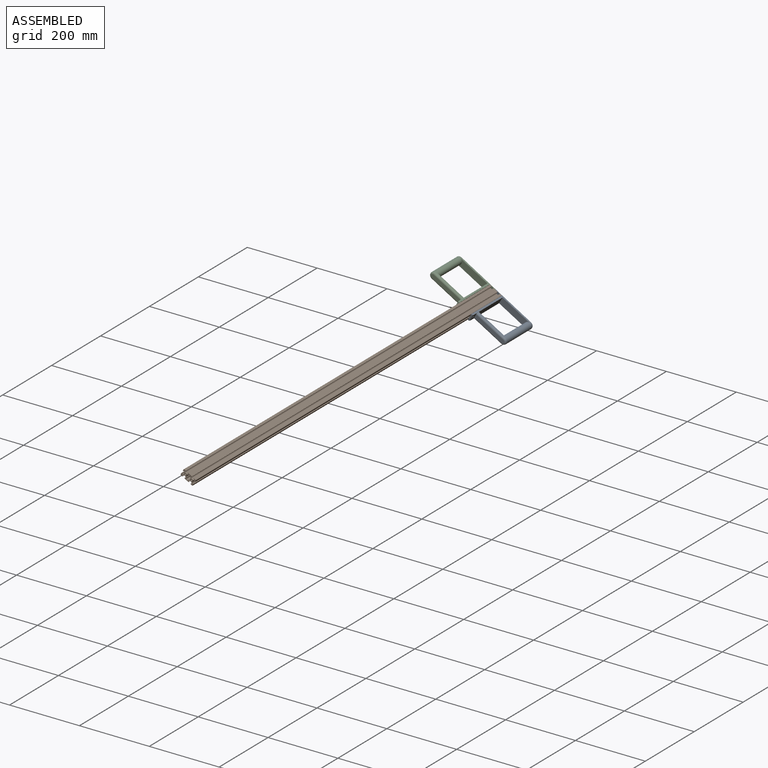
[diagram: assembled view]
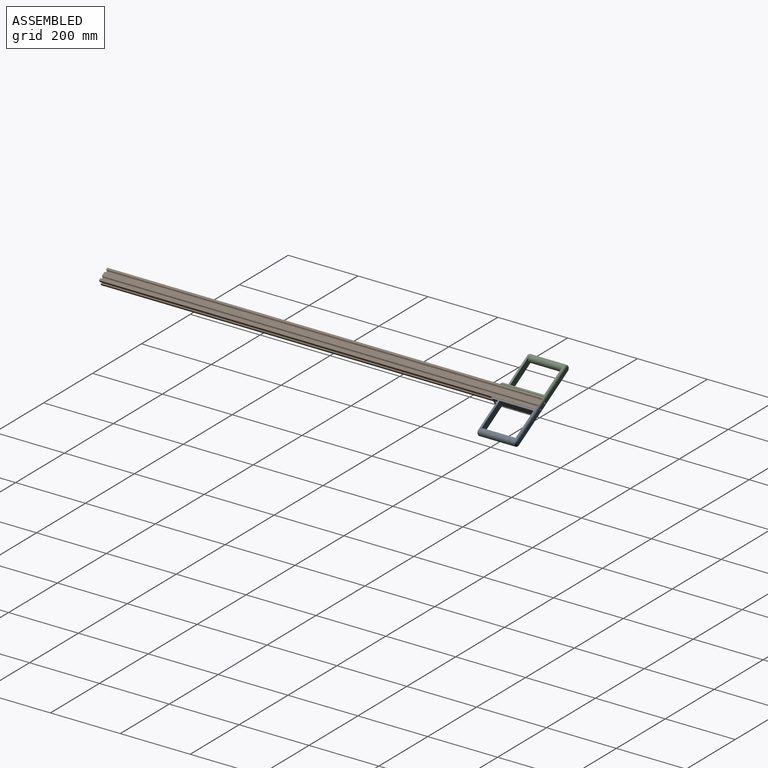
[diagram: assembled view, second angle]
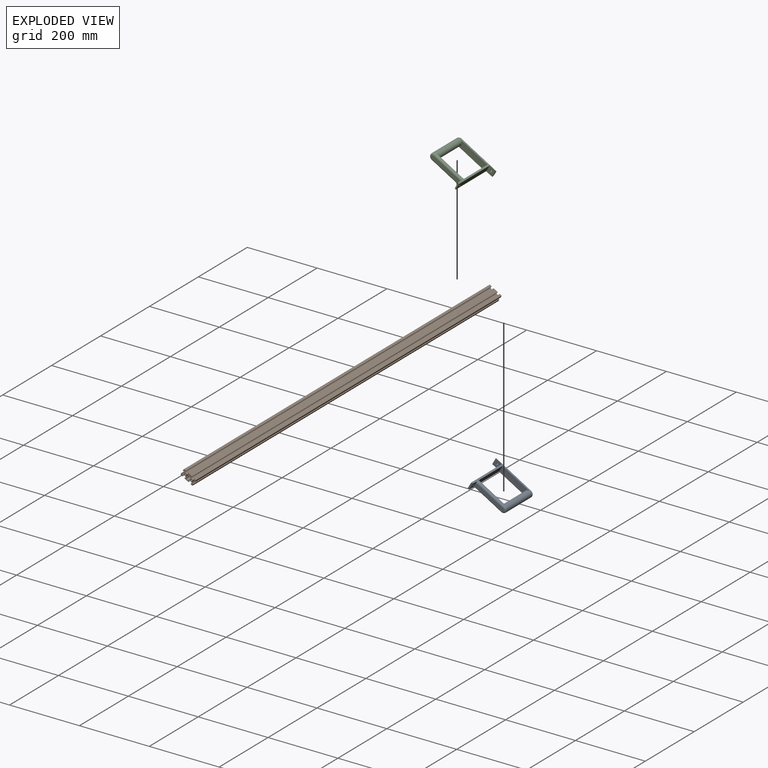
[diagram: exploded view]
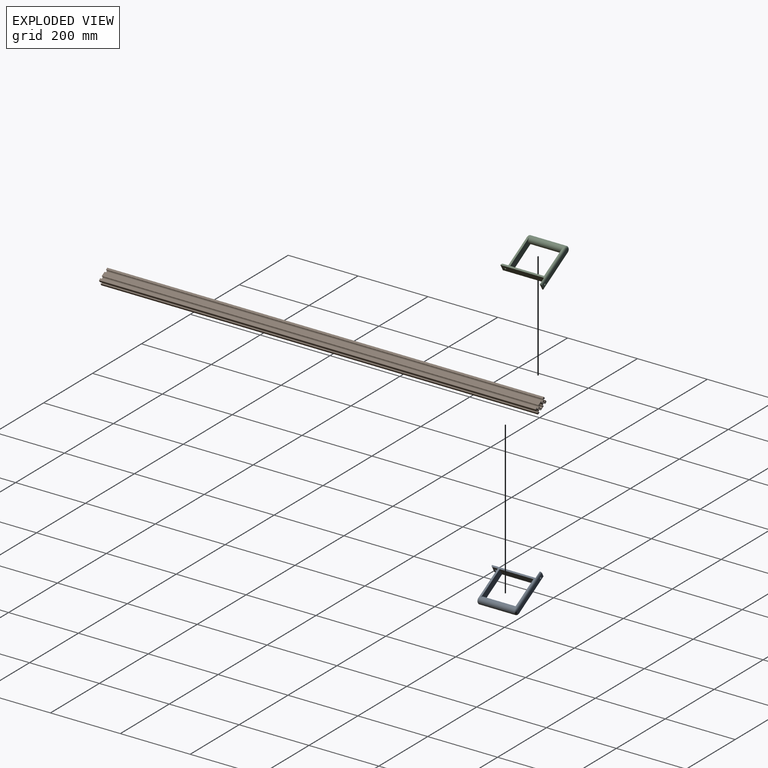
[diagram: exploded view, second angle]
ASSEMBLY  parts=3 mates=2
PART A: 21 faces, bbox 21.6x130x125.8 mm
  f0: plane 120x10mm, normal (0,1,0), area 1167.6mm2, adj f10,f11,f18,f19,f20
  f1: plane 125x95mm, normal (-1,0,0), area 1159.6mm2, adj f4,f5,f6,f8,f12,f13,f14,f15
  f2: plane 125x95mm, normal (1,0,0), area 1159.6mm2, adj f4,f5,f6,f8,f12,f13,f14,f17
  f3: plane 95x10mm, normal (0,-1,0), area 939.3mm2, adj f5,f15,f16,f17
  f4: plane 90x20mm, normal (0,1,0), area 1642.9mm2, adj f1,f2,f6,f14
  f5: plane 20x17.15mm, normal (0,0,1), area 232mm2, adj f1,f2,f3,f7,f12,f15,f17
  f6: plane 96.85x20mm, normal (0,0,1), area 1937mm2, adj f1,f2,f4,f13
  f7: cylinder r=2.62mm len=5.25mm, axis (0,0,-1), area 82.5mm2, adj f5,f8
  f8: plane 125x20mm, normal (0,0,-1), area 2478.4mm2, adj f1,f2,f7,f9,f12
  f9: plane 20x20mm, normal (0,-1,0), area 378.4mm2, adj f8,f10,f11,f18,f20
  f10: plane 20x5mm, normal (0,0,-1), area 89.3mm2, adj f0,f9,f18,f20
  f11: cylinder r=2.62mm len=5.25mm, axis (0,-1,0), area 82.5mm2, adj f0,f9
  f12: cylinder r=5mm len=20mm, axis (-1,0,0), area 157.1mm2, adj f1,f2,f5,f8
  f13: plane 90x20mm, normal (0,-1,0), area 1642.9mm2, adj f1,f2,f6,f14
  f14: cylinder r=10mm len=102.85mm, axis (0,1,0), area 6273.9mm2, adj f1,f2,f4,f13,f16,f19
  f15: cylinder r=5mm len=90mm, axis (0,0,1), area 706.9mm2, adj f1,f3,f5,f16
  f16: torus R=5mm, axis (0,-1,0), area 201.9mm2, adj f3,f14,f15,f17
  f17: cylinder r=5mm len=90mm, axis (0,0,-1), area 706.9mm2, adj f2,f3,f5,f16
  f18: cylinder r=5mm len=115mm, axis (0,0,1), area 903.2mm2, adj f0,f1,f9,f10,f19
  f19: torus R=5mm, axis (0,1,0), area 201.9mm2, adj f0,f14,f18,f20
  f20: cylinder r=5mm len=115mm, axis (0,0,-1), area 903.2mm2, adj f0,f2,f9,f10,f19
PART B: 202 faces, bbox 40x1250x20 mm
  f0: plane 40x20mm, normal (0,1,0), area 299mm2, adj f1,f2,f3,f4,f5,f6,f7,f8
  f1: cylinder r=0.2mm len=1250mm, axis (0,1,0), area 392.7mm2, adj f0,f2,f174,f201
  f2: plane 1250x4.7mm, normal (0,0,1), area 5875mm2, adj f0,f1,f3,f201
  f3: cylinder r=1.5mm len=1250mm, axis (0,1,0), area 2945.2mm2, adj f0,f2,f4,f201
  f4: plane 1250x4.7mm, normal (-1,0,0), area 5875mm2, adj f0,f3,f5,f201
  f5: cylinder r=0.2mm len=1250mm, axis (0,1,0), area 392.7mm2, adj f0,f4,f6,f201
  f6: plane 1250x0.1mm, normal (0,0,-1), area 125mm2, adj f0,f5,f7,f201
  f7: cylinder r=0.2mm len=1250mm, axis (0,1,0), area 392.7mm2, adj f0,f6,f8,f201
  f8: plane 1250x0.1mm, normal (-1,0,0), area 125mm2, adj f0,f7,f9,f201
  f9: cylinder r=0.2mm len=1250mm, axis (0,1,0), area 392.7mm2, adj f0,f8,f10,f201
  f10: plane 1250x0.8mm, normal (0,0,-1), area 1000mm2, adj f0,f9,f11,f201
  f11: cylinder r=0.3mm len=1250mm, axis (0,1,0), area 589mm2, adj f0,f10,f12,f201
  f12: plane 1250x1.8mm, normal (1,0,0), area 2250mm2, adj f0,f11,f13,f201
  f13: cylinder r=0.3mm len=1250mm, axis (0,1,0), area 589mm2, adj f0,f12,f14,f201
  f14: plane 1250x0.72mm, normal (0,0,-1), area 897.5mm2, adj f0,f13,f15,f201
  f15: cylinder r=1.5mm len=1250mm, axis (0,1,0), area 1472.6mm2, adj f0,f14,f16,f201
  f16: plane 1250x1.78mm, normal (-0.71,0,-0.71), area 3150.1mm2, adj f0,f15,f17,f201
  f17: cylinder r=1.5mm len=1250mm, axis (0,1,0), area 1472.6mm2, adj f0,f16,f18,f201
  f18: plane 1250x4.44mm, normal (-1,0,0), area 5545mm2, adj f0,f17,f19,f201
  f19: cylinder r=1.5mm len=1250mm, axis (0,1,0), area 1472.6mm2, adj f0,f18,f20,f201
  f20: plane 1250x1.78mm, normal (-0.71,0,0.71), area 3150.1mm2, adj f0,f19,f21,f201
  f21: cylinder r=1.5mm len=1250mm, axis (0,1,0), area 1472.6mm2, adj f0,f20,f22,f201
  f22: plane 1250x0.72mm, normal (0,0,1), area 897.5mm2, adj f0,f21,f23,f201
  f23: cylinder r=0.3mm len=1250mm, axis (0,1,0), area 589mm2, adj f0,f22,f24,f201
  f24: plane 1250x1.8mm, normal (1,0,0), area 2250mm2, adj f0,f23,f25,f201
  f25: cylinder r=0.3mm len=1250mm, axis (0,1,0), area 589mm2, adj f0,f24,f26,f201
  f26: plane 1250x0.8mm, normal (0,0,1), area 1000mm2, adj f0,f25,f27,f201
  f27: cylinder r=0.2mm len=1250mm, axis (0,1,0), area 392.7mm2, adj f0,f26,f28,f201
  f28: plane 1250x0.1mm, normal (-1,0,0), area 125mm2, adj f0,f27,f29,f201
  f29: cylinder r=0.2mm len=1250mm, axis (0,1,0), area 392.7mm2, adj f0,f28,f30,f201
  f30: plane 1250x0.1mm, normal (0,0,1), area 125mm2, adj f0,f29,f31,f201
  f31: cylinder r=0.2mm len=1250mm, axis (0,1,0), area 392.7mm2, adj f0,f30,f32,f201
  f32: plane 1250x4.7mm, normal (-1,0,0), area 5875mm2, adj f0,f31,f33,f201
  f33: cylinder r=1.5mm len=1250mm, axis (0,1,0), area 2945.2mm2, adj f0,f32,f34,f201
  f34: plane 1250x4.7mm, normal (0,0,-1), area 5875mm2, adj f0,f33,f35,f201
  f35: cylinder r=0.2mm len=1250mm, axis (0,1,0), area 392.7mm2, adj f0,f34,f36,f201
  f36: plane 1250x0.1mm, normal (1,0,0), area 125mm2, adj f0,f35,f37,f201
  f37: cylinder r=0.2mm len=1250mm, axis (0,1,0), area 392.7mm2, adj f0,f36,f38,f201
  f38: plane 1250x0.1mm, normal (0,0,-1), area 125mm2, adj f0,f37,f39,f201
  f39: cylinder r=0.2mm len=1250mm, axis (0,1,0), area 392.7mm2, adj f0,f38,f40,f201
  f40: plane 1250x0.8mm, normal (1,0,0), area 1000mm2, adj f0,f39,f41,f201
  f41: cylinder r=0.3mm len=1250mm, axis (0,1,0), area 589mm2, adj f0,f40,f42,f201
  f42: plane 1250x1.8mm, normal (0,0,1), area 2250mm2, adj f0,f41,f43,f201
  f43: cylinder r=0.3mm len=1250mm, axis (0,1,0), area 589mm2, adj f0,f42,f44,f201
  f44: plane 1250x0.72mm, normal (1,0,0), area 897.5mm2, adj f0,f43,f45,f201
  f45: cylinder r=1.5mm len=1250mm, axis (0,1,0), area 1472.6mm2, adj f0,f44,f46,f201
  f46: plane 1250x1.78mm, normal (0.71,0,-0.71), area 3150.1mm2, adj f0,f45,f47,f201
  f47: cylinder r=1.5mm len=1250mm, axis (0,1,0), area 1472.6mm2, adj f0,f46,f48,f201
  f48: plane 1250x4.44mm, normal (0,0,-1), area 5545mm2, adj f0,f47,f49,f201
  f49: cylinder r=1.5mm len=1250mm, axis (0,1,0), area 1472.6mm2, adj f0,f48,f50,f201
  f50: plane 1250x1.78mm, normal (-0.71,0,-0.71), area 3150.1mm2, adj f0,f49,f51,f201
  f51: cylinder r=1.5mm len=1250mm, axis (0,1,0), area 1472.6mm2, adj f0,f50,f52,f201
  f52: plane 1250x0.72mm, normal (-1,0,0), area 897.5mm2, adj f0,f51,f53,f201
  f53: cylinder r=0.3mm len=1250mm, axis (0,1,0), area 589mm2, adj f0,f52,f54,f201
  f54: plane 1250x1.8mm, normal (0,0,1), area 2250mm2, adj f0,f53,f55,f201
  f55: cylinder r=0.3mm len=1250mm, axis (0,1,0), area 589mm2, adj f0,f54,f56,f201
  f56: plane 1250x0.8mm, normal (-1,0,0), area 1000mm2, adj f0,f55,f57,f201
  f57: cylinder r=0.2mm len=1250mm, axis (0,1,0), area 392.7mm2, adj f0,f56,f58,f201
  f58: plane 1250x0.1mm, normal (0,0,-1), area 125mm2, adj f0,f57,f59,f201
  f59: cylinder r=0.2mm len=1250mm, axis (0,1,0), area 392.7mm2, adj f0,f58,f60,f201
  f60: plane 1250x0.1mm, normal (-1,0,0), area 125mm2, adj f0,f59,f61,f201
  f61: cylinder r=0.2mm len=1250mm, axis (0,1,0), area 392.7mm2, adj f0,f60,f62,f201
  f62: plane 1250x12.4mm, normal (0,0,-1), area 15500mm2, adj f0,f61,f63,f201
  f63: cylinder r=0.2mm len=1250mm, axis (0,1,0), area 392.7mm2, adj f0,f62,f64,f201
  f64: plane 1250x0.1mm, normal (1,0,0), area 125mm2, adj f0,f63,f65,f201
  f65: cylinder r=0.2mm len=1250mm, axis (0,1,0), area 392.7mm2, adj f0,f64,f66,f201
  f66: plane 1250x0.1mm, normal (0,0,-1), area 125mm2, adj f0,f65,f67,f201
  f67: cylinder r=0.2mm len=1250mm, axis (0,1,0), area 392.7mm2, adj f0,f66,f68,f201
  f68: plane 1250x0.8mm, normal (1,0,0), area 1000mm2, adj f0,f67,f69,f201
  f69: cylinder r=0.3mm len=1250mm, axis (0,1,0), area 589mm2, adj f0,f68,f70,f201
  f70: plane 1250x1.8mm, normal (0,0,1), area 2250mm2, adj f0,f69,f71,f201
  f71: cylinder r=0.3mm len=1250mm, axis (0,1,0), area 589mm2, adj f0,f70,f72,f201
  f72: plane 1250x0.72mm, normal (1,0,0), area 897.5mm2, adj f0,f71,f73,f201
  f73: cylinder r=1.5mm len=1250mm, axis (0,1,0), area 1472.6mm2, adj f0,f72,f74,f201
  f74: plane 1250x1.78mm, normal (0.71,0,-0.71), area 3150.1mm2, adj f0,f73,f75,f201
  f75: cylinder r=1.5mm len=1250mm, axis (0,1,0), area 1472.6mm2, adj f0,f74,f76,f201
  f76: plane 1250x4.44mm, normal (0,0,-1), area 5545mm2, adj f0,f75,f77,f201
  f77: cylinder r=1.5mm len=1250mm, axis (0,1,0), area 1472.6mm2, adj f0,f76,f78,f201
  f78: plane 1250x1.78mm, normal (-0.71,0,-0.71), area 3150.1mm2, adj f0,f77,f79,f201
  f79: cylinder r=1.5mm len=1250mm, axis (0,1,0), area 1472.6mm2, adj f0,f78,f80,f201
  f80: plane 1250x0.72mm, normal (-1,0,0), area 897.5mm2, adj f0,f79,f81,f201
  f81: cylinder r=0.3mm len=1250mm, axis (0,1,0), area 589mm2, adj f0,f80,f82,f201
  f82: plane 1250x1.8mm, normal (0,0,1), area 2250mm2, adj f0,f81,f83,f201
  f83: cylinder r=0.3mm len=1250mm, axis (0,1,0), area 589mm2, adj f0,f82,f84,f201
  f84: plane 1250x0.8mm, normal (-1,0,0), area 1000mm2, adj f0,f83,f85,f201
  f85: cylinder r=0.2mm len=1250mm, axis (0,1,0), area 392.7mm2, adj f0,f84,f86,f201
  f86: plane 1250x0.1mm, normal (0,0,-1), area 125mm2, adj f0,f85,f87,f201
  f87: cylinder r=0.2mm len=1250mm, axis (0,1,0), area 392.7mm2, adj f0,f86,f88,f201
  f88: plane 1250x0.1mm, normal (-1,0,0), area 125mm2, adj f0,f87,f89,f201
  f89: cylinder r=0.2mm len=1250mm, axis (0,1,0), area 392.7mm2, adj f0,f88,f90,f201
  f90: plane 1250x4.7mm, normal (0,0,-1), area 5875mm2, adj f0,f89,f91,f201
  f91: cylinder r=1.5mm len=1250mm, axis (0,1,0), area 2945.2mm2, adj f0,f90,f92,f201
  f92: plane 1250x4.7mm, normal (1,0,0), area 5875mm2, adj f0,f91,f93,f201
  f93: cylinder r=0.2mm len=1250mm, axis (0,1,0), area 392.7mm2, adj f0,f92,f94,f201
  f94: plane 1250x0.1mm, normal (0,0,1), area 125mm2, adj f0,f93,f95,f201
  f95: cylinder r=0.2mm len=1250mm, axis (0,1,0), area 392.7mm2, adj f0,f94,f96,f201
  f96: plane 1250x0.1mm, normal (1,0,0), area 125mm2, adj f0,f95,f97,f201
  f97: cylinder r=0.2mm len=1250mm, axis (0,1,0), area 392.7mm2, adj f0,f96,f98,f201
  f98: plane 1250x0.8mm, normal (0,0,1), area 1000mm2, adj f0,f97,f99,f201
  f99: cylinder r=0.3mm len=1250mm, axis (0,1,0), area 589mm2, adj f0,f98,f100,f201
  f100: plane 1250x1.8mm, normal (-1,0,0), area 2250mm2, adj f0,f99,f101,f201
  f101: cylinder r=0.3mm len=1250mm, axis (0,1,0), area 589mm2, adj f0,f100,f102,f201
  f102: plane 1250x0.72mm, normal (0,0,1), area 897.5mm2, adj f0,f101,f103,f201
  f103: cylinder r=1.5mm len=1250mm, axis (0,1,0), area 1472.6mm2, adj f0,f102,f104,f201
  f104: plane 1250x1.78mm, normal (0.71,0,0.71), area 3150.1mm2, adj f0,f103,f105,f201
  f105: cylinder r=1.5mm len=1250mm, axis (0,1,0), area 1472.6mm2, adj f0,f104,f106,f201
  f106: plane 1250x4.44mm, normal (1,0,0), area 5545mm2, adj f0,f105,f107,f201
  f107: cylinder r=1.5mm len=1250mm, axis (0,1,0), area 1472.6mm2, adj f0,f106,f108,f201
  f108: plane 1250x1.78mm, normal (0.71,0,-0.71), area 3150.1mm2, adj f0,f107,f109,f201
  f109: cylinder r=1.5mm len=1250mm, axis (0,1,0), area 1472.6mm2, adj f0,f108,f110,f201
  f110: plane 1250x0.72mm, normal (0,0,-1), area 897.5mm2, adj f0,f109,f111,f201
  f111: cylinder r=0.3mm len=1250mm, axis (0,1,0), area 589mm2, adj f0,f110,f112,f201
  f112: plane 1250x1.8mm, normal (-1,0,0), area 2250mm2, adj f0,f111,f113,f201
  f113: cylinder r=0.3mm len=1250mm, axis (0,1,0), area 589mm2, adj f0,f112,f114,f201
  f114: plane 1250x0.8mm, normal (0,0,-1), area 1000mm2, adj f0,f113,f115,f201
  f115: cylinder r=0.2mm len=1250mm, axis (0,1,0), area 392.7mm2, adj f0,f114,f116,f201
  f116: plane 1250x0.1mm, normal (1,0,0), area 125mm2, adj f0,f115,f117,f201
  f117: cylinder r=0.2mm len=1250mm, axis (0,1,0), area 392.7mm2, adj f0,f116,f118,f201
  f118: plane 1250x0.1mm, normal (0,0,-1), area 125mm2, adj f0,f117,f119,f201
  f119: cylinder r=0.2mm len=1250mm, axis (0,1,0), area 392.7mm2, adj f0,f118,f120,f201
  f120: plane 1250x4.7mm, normal (1,0,0), area 5875mm2, adj f0,f119,f121,f201
  f121: cylinder r=1.5mm len=1250mm, axis (0,1,0), area 2945.2mm2, adj f0,f120,f122,f201
  f122: plane 1250x4.7mm, normal (0,0,1), area 5875mm2, adj f0,f121,f123,f201
  f123: cylinder r=0.2mm len=1250mm, axis (0,1,0), area 392.7mm2, adj f0,f122,f124,f201
  f124: plane 1250x0.1mm, normal (-1,0,0), area 125mm2, adj f0,f123,f125,f201
  f125: cylinder r=0.2mm len=1250mm, axis (0,1,0), area 392.7mm2, adj f0,f124,f126,f201
  f126: plane 1250x0.1mm, normal (0,0,1), area 125mm2, adj f0,f125,f127,f201
  f127: cylinder r=0.2mm len=1250mm, axis (0,1,0), area 392.7mm2, adj f0,f126,f128,f201
  f128: plane 1250x0.8mm, normal (-1,0,0), area 1000mm2, adj f0,f127,f129,f201
  f129: cylinder r=0.3mm len=1250mm, axis (0,1,0), area 589mm2, adj f0,f128,f130,f201
  f130: plane 1250x1.8mm, normal (0,0,-1), area 2250mm2, adj f0,f129,f131,f201
  f131: cylinder r=0.3mm len=1250mm, axis (0,1,0), area 589mm2, adj f0,f130,f132,f201
  f132: plane 1250x0.72mm, normal (-1,0,0), area 897.5mm2, adj f0,f131,f133,f201
  f133: cylinder r=1.5mm len=1250mm, axis (0,1,0), area 1472.6mm2, adj f0,f132,f134,f201
  f134: plane 1250x1.78mm, normal (-0.71,0,0.71), area 3150.1mm2, adj f0,f133,f135,f201
  f135: cylinder r=1.5mm len=1250mm, axis (0,1,0), area 1472.6mm2, adj f0,f134,f136,f201
  f136: plane 1250x4.44mm, normal (0,0,1), area 5545mm2, adj f0,f135,f137,f201
  f137: cylinder r=1.5mm len=1250mm, axis (0,1,0), area 1472.6mm2, adj f0,f136,f138,f201
  f138: plane 1250x1.78mm, normal (0.71,0,0.71), area 3150.1mm2, adj f0,f137,f139,f201
  f139: cylinder r=1.5mm len=1250mm, axis (0,1,0), area 1472.6mm2, adj f0,f138,f140,f201
  f140: plane 1250x0.72mm, normal (1,0,0), area 897.5mm2, adj f0,f139,f141,f201
  f141: cylinder r=0.3mm len=1250mm, axis (0,1,0), area 589mm2, adj f0,f140,f142,f201
  f142: plane 1250x1.8mm, normal (0,0,-1), area 2250mm2, adj f0,f141,f143,f201
  f143: cylinder r=0.3mm len=1250mm, axis (0,1,0), area 589mm2, adj f0,f142,f144,f201
  f144: plane 1250x0.8mm, normal (1,0,0), area 1000mm2, adj f0,f143,f145,f201
  f145: cylinder r=0.2mm len=1250mm, axis (0,1,0), area 392.7mm2, adj f0,f144,f146,f201
  f146: plane 1250x0.1mm, normal (0,0,1), area 125mm2, adj f0,f145,f147,f201
  f147: cylinder r=0.2mm len=1250mm, axis (0,1,0), area 392.7mm2, adj f0,f146,f148,f201
  f148: plane 1250x0.1mm, normal (1,0,0), area 125mm2, adj f0,f147,f149,f201
  f149: cylinder r=0.2mm len=1250mm, axis (0,1,0), area 392.7mm2, adj f0,f148,f150,f201
  f150: plane 1250x12.4mm, normal (0,0,1), area 15500mm2, adj f0,f149,f151,f201
  f151: cylinder r=0.2mm len=1250mm, axis (0,1,0), area 392.7mm2, adj f0,f150,f152,f201
  f152: plane 1250x0.1mm, normal (-1,0,0), area 125mm2, adj f0,f151,f153,f201
  f153: cylinder r=0.2mm len=1250mm, axis (0,1,0), area 392.7mm2, adj f0,f152,f154,f201
  f154: plane 1250x0.1mm, normal (0,0,1), area 125mm2, adj f0,f153,f155,f201
  f155: cylinder r=0.2mm len=1250mm, axis (0,1,0), area 392.7mm2, adj f0,f154,f156,f201
  f156: plane 1250x1.1mm, normal (-1,0,0), area 1375mm2, adj f0,f155,f157,f201
  f157: plane 1250x2.2mm, normal (0,0,-1), area 2750mm2, adj f0,f156,f158,f201
  f158: cylinder r=0.3mm len=1250mm, axis (0,1,0), area 589mm2, adj f0,f157,f159,f201
  f159: plane 1250x0.62mm, normal (-1,0,0), area 772.5mm2, adj f0,f158,f160,f201
  f160: cylinder r=1.5mm len=1250mm, axis (0,1,0), area 1472.6mm2, adj f0,f159,f161,f201
  f161: plane 1250x1.88mm, normal (-0.71,0,0.71), area 3326.9mm2, adj f0,f160,f162,f201
  f162: cylinder r=1.5mm len=1250mm, axis (0,1,0), area 1472.6mm2, adj f0,f161,f163,f201
  f163: plane 1250x4.23mm, normal (0,0,1), area 5289.6mm2, adj f0,f162,f164,f201
  f164: cylinder r=1.5mm len=1250mm, axis (0,1,0), area 1524.1mm2, adj f0,f163,f165,f201
  f165: plane 1250x2.1mm, normal (0.73,0,0.69), area 3612mm2, adj f0,f164,f166,f201
  f166: cylinder r=1.5mm len=1250mm, axis (0,1,0), area 1421.1mm2, adj f0,f165,f167,f201
  f167: plane 1250x0.4mm, normal (1,0,0), area 501.8mm2, adj f0,f166,f168,f201
  f168: cylinder r=0.3mm len=1250mm, axis (0,1,0), area 589mm2, adj f0,f167,f169,f201
  f169: plane 1250x2.1mm, normal (0,0,-1), area 2625mm2, adj f0,f168,f170,f201
  f170: plane 1250x1.1mm, normal (1,0,0), area 1375mm2, adj f0,f169,f171,f201
  f171: cylinder r=0.2mm len=1250mm, axis (0,1,0), area 392.7mm2, adj f0,f170,f172,f201
  f172: plane 1250x0.1mm, normal (0,0,1), area 125mm2, adj f0,f171,f173,f201
  f173: cylinder r=0.2mm len=1250mm, axis (0,1,0), area 392.7mm2, adj f0,f172,f174,f201
  f174: plane 1250x0.1mm, normal (1,0,0), area 125mm2, adj f0,f1,f173,f201
  f175: cylinder r=0.3mm len=1250mm, axis (0,1,0), area 589mm2, adj f0,f176,f198,f201
  f176: plane 1250x4.8mm, normal (0,0,-1), area 6000mm2, adj f0,f175,f177,f201
  f177: cylinder r=0.3mm len=1250mm, axis (0,1,0), area 589mm2, adj f0,f176,f178,f201
  f178: plane 1250x1.04mm, normal (1,0,0), area 1299.2mm2, adj f0,f177,f179,f201
  f179: cylinder r=1.5mm len=1250mm, axis (0,1,0), area 1472.6mm2, adj f0,f178,f180,f201
  f180: plane 1250x2.52mm, normal (0.71,0,-0.71), area 4457.1mm2, adj f0,f179,f181,f201
  f181: cylinder r=1.5mm len=1250mm, axis (0,1,0), area 1472.6mm2, adj f0,f180,f182,f201
  f182: plane 1250x4.44mm, normal (1,0,0), area 5545mm2, adj f0,f181,f183,f201
  f183: cylinder r=1.5mm len=1250mm, axis (0,1,0), area 1472.6mm2, adj f0,f182,f184,f201
  f184: plane 1250x2.52mm, normal (0.71,0,0.71), area 4457.1mm2, adj f0,f183,f185,f201
  f185: cylinder r=1.5mm len=1250mm, axis (0,1,0), area 1472.6mm2, adj f0,f184,f186,f201
  f186: plane 1250x1.04mm, normal (1,0,0), area 1299.2mm2, adj f0,f185,f187,f201
  f187: cylinder r=0.3mm len=1250mm, axis (0,1,0), area 589mm2, adj f0,f186,f188,f201
  f188: plane 1250x4.8mm, normal (0,0,1), area 6000mm2, adj f0,f187,f189,f201
  f189: cylinder r=0.3mm len=1250mm, axis (0,1,0), area 589mm2, adj f0,f188,f190,f201
  f190: plane 1250x1.04mm, normal (-1,0,0), area 1299.2mm2, adj f0,f189,f191,f201
  f191: cylinder r=1.5mm len=1250mm, axis (0,1,0), area 1472.6mm2, adj f0,f190,f192,f201
  f192: plane 1250x2.52mm, normal (-0.71,0,0.71), area 4457.1mm2, adj f0,f191,f193,f201
  f193: cylinder r=1.5mm len=1250mm, axis (0,1,0), area 1472.6mm2, adj f0,f192,f194,f201
  f194: plane 1250x4.44mm, normal (-1,0,0), area 5545mm2, adj f0,f193,f195,f201
  f195: cylinder r=1.5mm len=1250mm, axis (0,1,0), area 1472.6mm2, adj f0,f194,f196,f201
  f196: plane 1250x2.52mm, normal (-0.71,0,-0.71), area 4457.1mm2, adj f0,f195,f197,f201
  f197: cylinder r=1.5mm len=1250mm, axis (0,1,0), area 1472.6mm2, adj f0,f196,f198,f201
  f198: plane 1250x1.04mm, normal (-1,0,0), area 1299.2mm2, adj f0,f175,f197,f201
  f199: cylinder r=2.5mm len=1250mm, axis (0,1,0), area 19635mm2, adj f0,f201
  f200: cylinder r=2.5mm len=1250mm, axis (0,1,0), area 19635mm2, adj f0,f201
  f201: plane 40x20mm, normal (0,-1,0), area 299mm2, adj f1,f2,f3,f4,f5,f6,f7,f8
PART C: same geometry as A
PLACE A rot(axis=(0,1,0),120deg) t=(65.95,-61.79,51.35)mm
PLACE B rot(axis=(0,-1,0),150deg) t=(83.7,7.3,82.09)mm
PLACE C rot(axis=(0,-1,0),60deg) t=(56.81,-61.79,115.51)mm
MATE fastened B.f199 <-> A.f11  axis (0,1,0) through (70.04,7.3,78.43)mm
MATE fastened C.f11 <-> B.f200  axis (0,-1,0) through (52.72,7.3,88.43)mm
